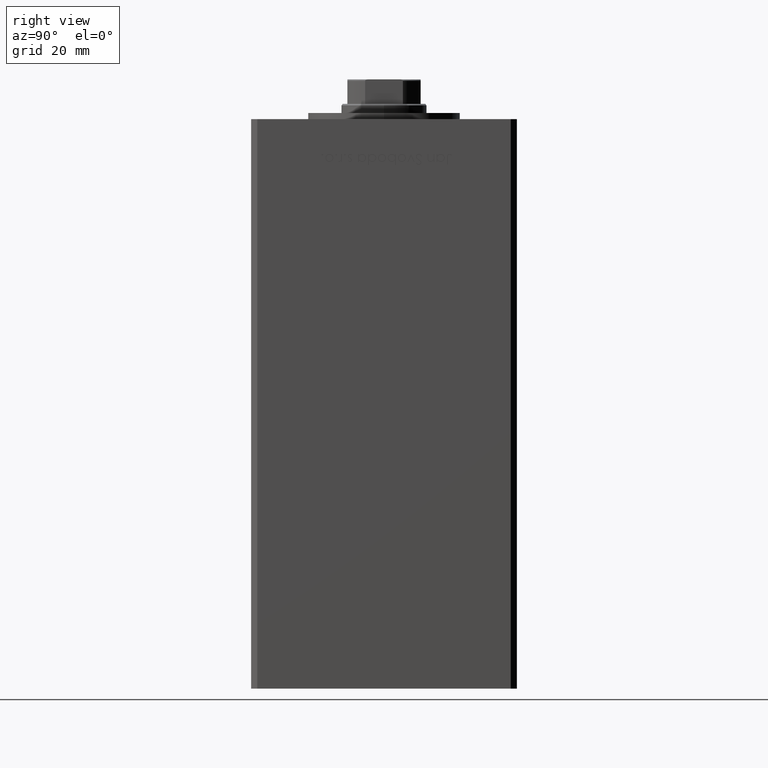
[diagram: clean part render]
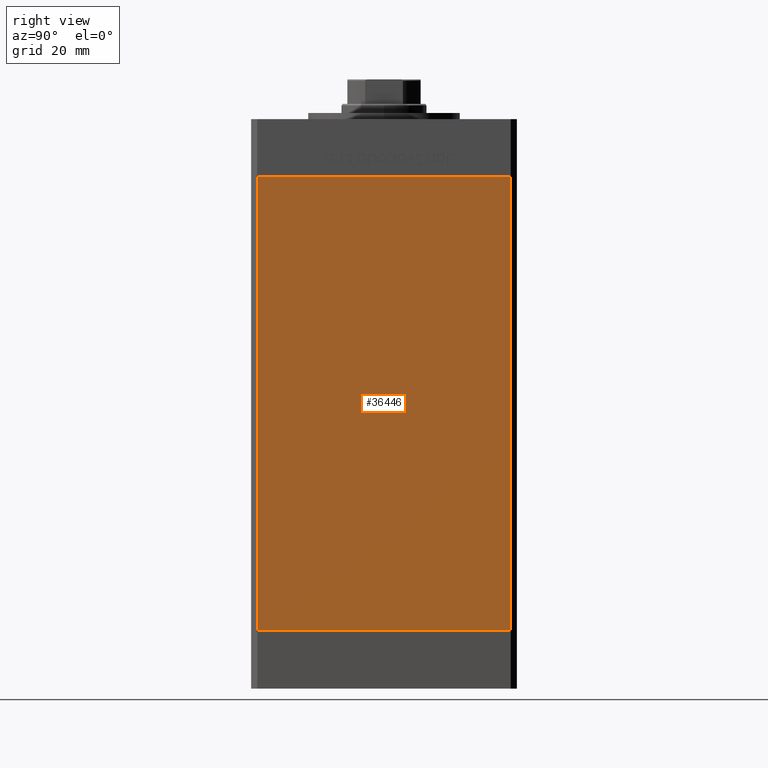
[diagram: same view with one face highlighted and labeled with its STEP entity id]
A machine part, right view. The second image highlights one B-rep face of the part: STEP entity #36446.
In plain terms, the highlighted planar face has unit normal (1, -0, 0).
Its self-contained STEP definition (entity closure, byte-faithful):
#2739 = VERTEX_POINT ( 'NONE', #18437 ) ;
#3634 = EDGE_CURVE ( 'NONE', #4366, #18751, #10210, .T. ) ;
#4364 = EDGE_LOOP ( 'NONE', ( #25693, #38981, #51970, #19093 ) ) ;
#4366 = VERTEX_POINT ( 'NONE', #15081 ) ;
#6957 = CARTESIAN_POINT ( 'NONE',  ( 50.00000000000001421, 41.49999999999999289, 148.5000000000000000 ) ) ;
#10210 = LINE ( 'NONE', #50051, #33424 ) ;
#10427 = VECTOR ( 'NONE', #11592, 1000.000000000000000 ) ;
#10723 = VECTOR ( 'NONE', #23046, 1000.000000000000000 ) ;
#11592 = DIRECTION ( 'NONE',  ( -0.000000000000000000, -0.000000000000000000, -1.000000000000000000 ) ) ;
#12370 = DIRECTION ( 'NONE',  ( 1.000000000000000000, -3.344045254895050480E-16, 0.000000000000000000 ) ) ;
#15081 = CARTESIAN_POINT ( 'NONE',  ( 49.99999999999998579, -41.49999999999999289, 148.5000000000000000 ) ) ;
#18258 = EDGE_CURVE ( 'NONE', #2739, #18751, #23518, .T. ) ;
#18437 = CARTESIAN_POINT ( 'NONE',  ( 50.00000000000001421, 41.49999999999999289, 0.000000000000000000 ) ) ;
#18751 = VERTEX_POINT ( 'NONE', #46110 ) ;
#19093 = ORIENTED_EDGE ( 'NONE', *, *, #3634, .T. ) ;
#19791 = VERTEX_POINT ( 'NONE', #48438 ) ;
#20548 = DIRECTION ( 'NONE',  ( 3.344045254895050480E-16, 1.000000000000000000, 0.000000000000000000 ) ) ;
#23046 = DIRECTION ( 'NONE',  ( -3.344045254895050973E-16, -1.000000000000000000, 0.000000000000000000 ) ) ;
#23254 = CARTESIAN_POINT ( 'NONE',  ( 50.00000000000001421, 41.49999999999999289, 0.000000000000000000 ) ) ;
#23518 = LINE ( 'NONE', #23254, #47038 ) ;
#24250 = FACE_OUTER_BOUND ( 'NONE', #4364, .T. ) ;
#25586 = EDGE_CURVE ( 'NONE', #19791, #2739, #31901, .T. ) ;
#25693 = ORIENTED_EDGE ( 'NONE', *, *, #18258, .F. ) ;
#27459 = DIRECTION ( 'NONE',  ( -3.344045254895050973E-16, -1.000000000000000000, 0.000000000000000000 ) ) ;
#31633 = CARTESIAN_POINT ( 'NONE',  ( 50.00000000000001421, 41.49999999999999289, 148.5000000000000000 ) ) ;
#31901 = LINE ( 'NONE', #31633, #10427 ) ;
#32941 = CARTESIAN_POINT ( 'NONE',  ( 50.00000000000001421, 41.49999999999999289, 148.5000000000000000 ) ) ;
#33187 = DIRECTION ( 'NONE',  ( -0.000000000000000000, -0.000000000000000000, -1.000000000000000000 ) ) ;
#33424 = VECTOR ( 'NONE', #33187, 1000.000000000000000 ) ;
#36446 = ADVANCED_FACE ( 'NONE', ( #24250 ), #51227, .T. ) ;
#38981 = ORIENTED_EDGE ( 'NONE', *, *, #25586, .F. ) ;
#40379 = EDGE_CURVE ( 'NONE', #19791, #4366, #43100, .T. ) ;
#43100 = LINE ( 'NONE', #6957, #10723 ) ;
#46110 = CARTESIAN_POINT ( 'NONE',  ( 49.99999999999998579, -41.49999999999999289, 0.000000000000000000 ) ) ;
#47038 = VECTOR ( 'NONE', #27459, 1000.000000000000000 ) ;
#48438 = CARTESIAN_POINT ( 'NONE',  ( 50.00000000000001421, 41.49999999999999289, 148.5000000000000000 ) ) ;
#50051 = CARTESIAN_POINT ( 'NONE',  ( 49.99999999999998579, -41.49999999999999289, 148.5000000000000000 ) ) ;
#51227 = PLANE ( 'NONE',  #51895 ) ;
#51895 = AXIS2_PLACEMENT_3D ( 'NONE', #32941, #12370, #20548 ) ;
#51970 = ORIENTED_EDGE ( 'NONE', *, *, #40379, .T. ) ;